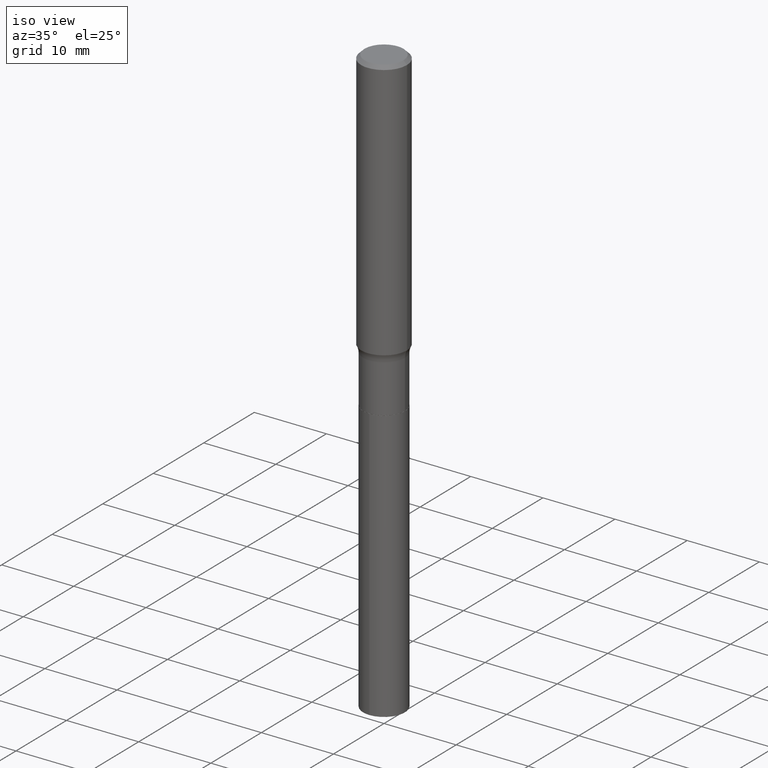
[diagram: clean part render]
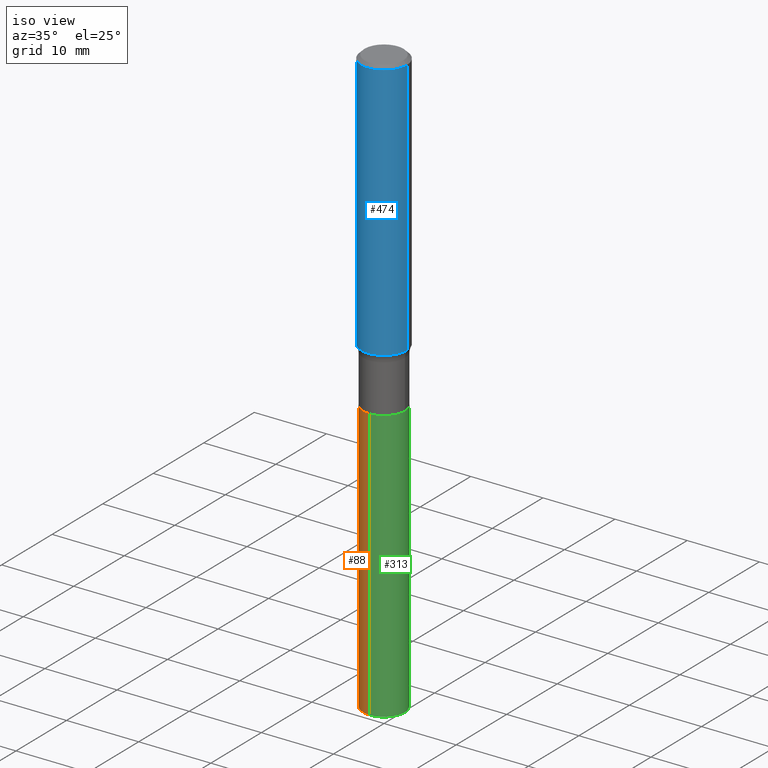
[diagram: same view with three faces highlighted in distinct colors, each labeled with its STEP entity id]
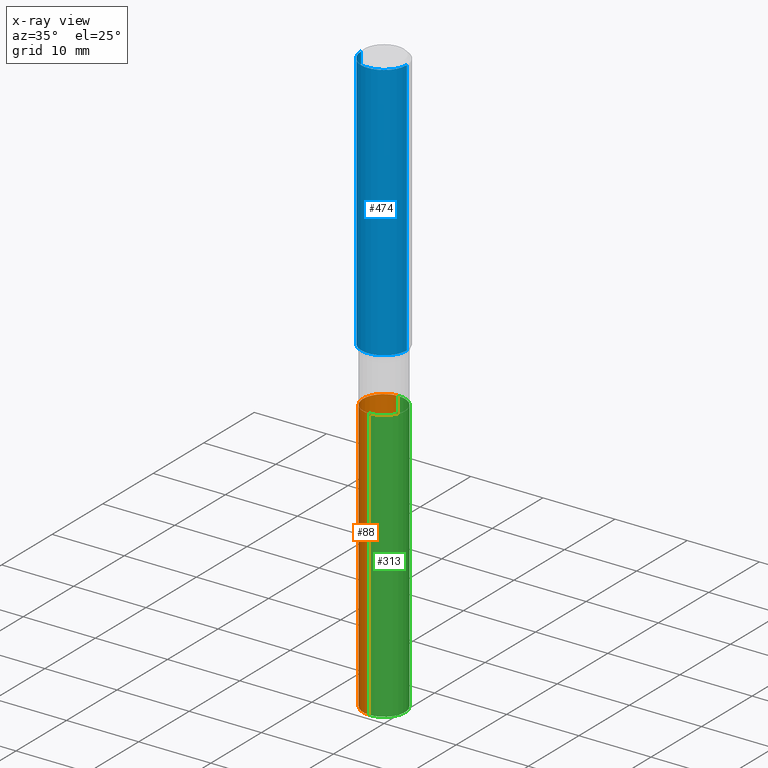
[diagram: x-ray of the same camera — body ghosted, the three highlighted faces saturated]
A machine part, iso view with three faces highlighted in distinct colors.
The next image is the same camera in x-ray (body ghosted, the three faces saturated) — at least one of them is partly hidden behind the body in this view.
Their STEP definitions:

[orange] entity #88 — the highlighted cylindrical surface (edge-blend (fillet) strip) has radius 2.8956 mm, axis along (-0, 0, 1).
#3 = DIRECTION ( 'NONE',  ( -6.982962677686265922E-15, -1.000000000000000000, 2.396357889179178137E-15 ) ) ;
#15 = AXIS2_PLACEMENT_3D ( 'NONE', #415, #419, #383 ) ;
#38 = CIRCLE ( 'NONE', #15, 0.1140000000000000041 ) ;
#41 = VERTEX_POINT ( 'NONE', #216 ) ;
#74 = CYLINDRICAL_SURFACE ( 'NONE', #453, 0.1140000000000000041 ) ;
#76 = DIRECTION ( 'NONE',  ( -2.445481192190742452E-29, 3.491463601378150534E-15, 1.000000000000000000 ) ) ;
#88 = ADVANCED_FACE ( 'NONE', ( #125 ), #74, .T. ) ;
#96 = VECTOR ( 'NONE', #76, 39.37007874015748143 ) ;
#104 = VERTEX_POINT ( 'NONE', #187 ) ;
#125 = FACE_OUTER_BOUND ( 'NONE', #431, .T. ) ;
#163 = EDGE_CURVE ( 'NONE', #41, #175, #491, .T. ) ;
#173 = ORIENTED_EDGE ( 'NONE', *, *, #249, .F. ) ;
#175 = VERTEX_POINT ( 'NONE', #230 ) ;
#186 = LINE ( 'NONE', #487, #471 ) ;
#187 = CARTESIAN_POINT ( 'NONE',  ( -7.960577452561921181E-16, -0.1140000000000060271, -1.727999999999999758 ) ) ;
#216 = CARTESIAN_POINT ( 'NONE',  ( 8.100187187665928313E-16, 0.1139999999999888047, -3.214055938067796880 ) ) ;
#217 = CARTESIAN_POINT ( 'NONE',  ( 4.225770097087915869E-29, -6.033279753520955359E-15, -1.727999999999999980 ) ) ;
#228 = EDGE_CURVE ( 'NONE', #350, #104, #186, .T. ) ;
#229 = ORIENTED_EDGE ( 'NONE', *, *, #357, .T. ) ;
#230 = CARTESIAN_POINT ( 'NONE',  ( 8.100187187665930286E-16, 0.1139999999999939950, -1.728000000000000203 ) ) ;
#249 = EDGE_CURVE ( 'NONE', #175, #104, #398, .T. ) ;
#263 = DIRECTION ( 'NONE',  ( -2.445481192190742452E-29, 3.491463601378150534E-15, 1.000000000000000000 ) ) ;
#266 = CARTESIAN_POINT ( 'NONE',  ( -7.960577452561559291E-16, -0.1140000000000112312, -3.214055938067795548 ) ) ;
#267 = DIRECTION ( 'NONE',  ( -2.445481192190742172E-29, 3.491463601378150534E-15, 1.000000000000000000 ) ) ;
#283 = ORIENTED_EDGE ( 'NONE', *, *, #228, .T. ) ;
#302 = ORIENTED_EDGE ( 'NONE', *, *, #163, .F. ) ;
#328 = DIRECTION ( 'NONE',  ( -6.982962677686265922E-15, -1.000000000000000000, 2.396357889179178137E-15 ) ) ;
#350 = VERTEX_POINT ( 'NONE', #266 ) ;
#352 = DIRECTION ( 'NONE',  ( -2.445481192190742172E-29, 3.491463601378150534E-15, 1.000000000000000000 ) ) ;
#357 = EDGE_CURVE ( 'NONE', #41, #350, #38, .T. ) ;
#383 = DIRECTION ( 'NONE',  ( -6.982962677686265922E-15, -1.000000000000000000, 4.792715778358356274E-15 ) ) ;
#398 = CIRCLE ( 'NONE', #441, 0.1140000000000000041 ) ;
#415 = CARTESIAN_POINT ( 'NONE',  ( 7.859891944176082660E-29, -1.122178997089652905E-14, -3.214055938067796436 ) ) ;
#419 = DIRECTION ( 'NONE',  ( -2.445481192190742172E-29, 3.491463601378150534E-15, 1.000000000000000000 ) ) ;
#422 = CARTESIAN_POINT ( 'NONE',  ( 8.100187187665563465E-16, 0.1139999999999939673, -1.728000000000000203 ) ) ;
#424 = CARTESIAN_POINT ( 'NONE',  ( 4.225770097087915869E-29, -6.033279753520955359E-15, -1.727999999999999980 ) ) ;
#431 = EDGE_LOOP ( 'NONE', ( #302, #229, #283, #173 ) ) ;
#441 = AXIS2_PLACEMENT_3D ( 'NONE', #424, #352, #3 ) ;
#453 = AXIS2_PLACEMENT_3D ( 'NONE', #217, #267, #328 ) ;
#471 = VECTOR ( 'NONE', #263, 39.37007874015748143 ) ;
#487 = CARTESIAN_POINT ( 'NONE',  ( -7.960577452561921181E-16, -0.1140000000000060271, -1.727999999999999758 ) ) ;
#491 = LINE ( 'NONE', #422, #96 ) ;

[blue] entity #474 — the highlighted cylindrical surface (edge-blend (fillet) strip) has radius 3.175 mm, axis along (-0, 0, 1).
#17 = VERTEX_POINT ( 'NONE', #433 ) ;
#23 = EDGE_LOOP ( 'NONE', ( #242, #333, #434, #202 ) ) ;
#25 = CARTESIAN_POINT ( 'NONE',  ( 0.1250000000000000000, -9.383356098140926809E-16, -0.01875000000000012768 ) ) ;
#29 = CARTESIAN_POINT ( 'NONE',  ( -0.1250000000000000000, -1.633740458479338781E-15, -0.01875000000000012768 ) ) ;
#58 = EDGE_CURVE ( 'NONE', #145, #446, #489, .T. ) ;
#64 = AXIS2_PLACEMENT_3D ( 'NONE', #178, #149, #407 ) ;
#85 = CIRCLE ( 'NONE', #362, 0.1250000000000000000 ) ;
#90 = VECTOR ( 'NONE', #258, 39.37007874015748143 ) ;
#106 = DIRECTION ( 'NONE',  ( 1.000000000000000000, -6.982962677686266711E-15, 0.000000000000000000 ) ) ;
#119 = DIRECTION ( 'NONE',  ( 1.000000000000000000, -6.982962677686269077E-15, 0.000000000000000000 ) ) ;
#131 = CARTESIAN_POINT ( 'NONE',  ( 3.486902385253749219E-29, -4.978372481255620459E-15, -1.425862548904567761 ) ) ;
#134 = CARTESIAN_POINT ( 'NONE',  ( 0.1250000000000001943, -5.851242815966405376E-15, -1.425862548904567761 ) ) ;
#141 = CYLINDRICAL_SURFACE ( 'NONE', #64, 0.1250000000000000833 ) ;
#145 = VERTEX_POINT ( 'NONE', #134 ) ;
#149 = DIRECTION ( 'NONE',  ( -2.445468806185136597E-29, 3.491481338843145583E-15, 1.000000000000000000 ) ) ;
#156 = CARTESIAN_POINT ( 'NONE',  ( 0.1250000000000000833, -8.728703347107839305E-16, 6.095220969744923945E-30 ) ) ;
#178 = CARTESIAN_POINT ( 'NONE',  ( 0.000000000000000000, 0.000000000000000000, 0.000000000000000000 ) ) ;
#182 = CARTESIAN_POINT ( 'NONE',  ( 4.585254011597162123E-31, -6.546527510330942834E-17, -0.01875000000000012768 ) ) ;
#202 = ORIENTED_EDGE ( 'NONE', *, *, #448, .F. ) ;
#206 = AXIS2_PLACEMENT_3D ( 'NONE', #131, #271, #119 ) ;
#242 = ORIENTED_EDGE ( 'NONE', *, *, #484, .F. ) ;
#243 = EDGE_CURVE ( 'NONE', #17, #145, #485, .T. ) ;
#258 = DIRECTION ( 'NONE',  ( -2.445468806185136877E-29, 3.491481338843145188E-15, 1.000000000000000000 ) ) ;
#271 = DIRECTION ( 'NONE',  ( -2.445468806185136597E-29, 3.491481338843145583E-15, 1.000000000000000000 ) ) ;
#319 = DIRECTION ( 'NONE',  ( -2.445468806185136597E-29, 3.491481338843145583E-15, 1.000000000000000000 ) ) ;
#321 = VERTEX_POINT ( 'NONE', #29 ) ;
#330 = DIRECTION ( 'NONE',  ( -2.445468806185136877E-29, 3.491481338843145188E-15, 1.000000000000000000 ) ) ;
#333 = ORIENTED_EDGE ( 'NONE', *, *, #243, .T. ) ;
#362 = AXIS2_PLACEMENT_3D ( 'NONE', #182, #319, #106 ) ;
#364 = CARTESIAN_POINT ( 'NONE',  ( -0.1250000000000000833, 8.881784197001258240E-16, -6.148668862818636431E-30 ) ) ;
#393 = VECTOR ( 'NONE', #330, 39.37007874015748143 ) ;
#405 = LINE ( 'NONE', #364, #393 ) ;
#407 = DIRECTION ( 'NONE',  ( 1.000000000000000000, -6.982962677686266711E-15, 4.876176775795935793E-29 ) ) ;
#433 = CARTESIAN_POINT ( 'NONE',  ( -0.1250000000000001943, -4.090194061555494438E-15, -1.425862548904567761 ) ) ;
#434 = ORIENTED_EDGE ( 'NONE', *, *, #58, .T. ) ;
#446 = VERTEX_POINT ( 'NONE', #25 ) ;
#448 = EDGE_CURVE ( 'NONE', #321, #446, #85, .T. ) ;
#474 = ADVANCED_FACE ( 'NONE', ( #478 ), #141, .T. ) ;
#478 = FACE_OUTER_BOUND ( 'NONE', #23, .T. ) ;
#484 = EDGE_CURVE ( 'NONE', #17, #321, #405, .T. ) ;
#485 = CIRCLE ( 'NONE', #206, 0.1250000000000001665 ) ;
#489 = LINE ( 'NONE', #156, #90 ) ;

[green] entity #313 — the highlighted cylindrical surface (edge-blend (fillet) strip) has radius 2.8956 mm, axis along (-0, 0, 1).
#11 = ORIENTED_EDGE ( 'NONE', *, *, #163, .T. ) ;
#41 = VERTEX_POINT ( 'NONE', #216 ) ;
#76 = DIRECTION ( 'NONE',  ( -2.445481192190742452E-29, 3.491463601378150534E-15, 1.000000000000000000 ) ) ;
#94 = ORIENTED_EDGE ( 'NONE', *, *, #334, .F. ) ;
#96 = VECTOR ( 'NONE', #76, 39.37007874015748143 ) ;
#104 = VERTEX_POINT ( 'NONE', #187 ) ;
#105 = AXIS2_PLACEMENT_3D ( 'NONE', #124, #444, #219 ) ;
#111 = DIRECTION ( 'NONE',  ( -2.445481192190742172E-29, 3.491463601378150534E-15, 1.000000000000000000 ) ) ;
#124 = CARTESIAN_POINT ( 'NONE',  ( 4.225770097087915869E-29, -6.033279753520955359E-15, -1.727999999999999980 ) ) ;
#144 = CYLINDRICAL_SURFACE ( 'NONE', #248, 0.1140000000000000041 ) ;
#163 = EDGE_CURVE ( 'NONE', #41, #175, #491, .T. ) ;
#172 = DIRECTION ( 'NONE',  ( -2.445481192190742172E-29, 3.491463601378150534E-15, 1.000000000000000000 ) ) ;
#175 = VERTEX_POINT ( 'NONE', #230 ) ;
#186 = LINE ( 'NONE', #487, #471 ) ;
#187 = CARTESIAN_POINT ( 'NONE',  ( -7.960577452561921181E-16, -0.1140000000000060271, -1.727999999999999758 ) ) ;
#201 = CARTESIAN_POINT ( 'NONE',  ( 4.225770097087915869E-29, -6.033279753520955359E-15, -1.727999999999999980 ) ) ;
#211 = ORIENTED_EDGE ( 'NONE', *, *, #228, .F. ) ;
#216 = CARTESIAN_POINT ( 'NONE',  ( 8.100187187665928313E-16, 0.1139999999999888047, -3.214055938067796880 ) ) ;
#219 = DIRECTION ( 'NONE',  ( -6.982962677686265922E-15, -1.000000000000000000, 2.396357889179178137E-15 ) ) ;
#228 = EDGE_CURVE ( 'NONE', #350, #104, #186, .T. ) ;
#230 = CARTESIAN_POINT ( 'NONE',  ( 8.100187187665930286E-16, 0.1139999999999939950, -1.728000000000000203 ) ) ;
#248 = AXIS2_PLACEMENT_3D ( 'NONE', #201, #172, #288 ) ;
#263 = DIRECTION ( 'NONE',  ( -2.445481192190742452E-29, 3.491463601378150534E-15, 1.000000000000000000 ) ) ;
#266 = CARTESIAN_POINT ( 'NONE',  ( -7.960577452561559291E-16, -0.1140000000000112312, -3.214055938067795548 ) ) ;
#279 = EDGE_LOOP ( 'NONE', ( #366, #11, #94, #211 ) ) ;
#288 = DIRECTION ( 'NONE',  ( -6.982962677686265922E-15, -1.000000000000000000, 2.396357889179178137E-15 ) ) ;
#290 = CIRCLE ( 'NONE', #105, 0.1140000000000000041 ) ;
#305 = AXIS2_PLACEMENT_3D ( 'NONE', #335, #111, #482 ) ;
#313 = ADVANCED_FACE ( 'NONE', ( #436 ), #144, .T. ) ;
#334 = EDGE_CURVE ( 'NONE', #104, #175, #290, .T. ) ;
#335 = CARTESIAN_POINT ( 'NONE',  ( 7.859891944176082660E-29, -1.122178997089652905E-14, -3.214055938067796436 ) ) ;
#350 = VERTEX_POINT ( 'NONE', #266 ) ;
#355 = CIRCLE ( 'NONE', #305, 0.1140000000000000041 ) ;
#366 = ORIENTED_EDGE ( 'NONE', *, *, #430, .T. ) ;
#422 = CARTESIAN_POINT ( 'NONE',  ( 8.100187187665563465E-16, 0.1139999999999939673, -1.728000000000000203 ) ) ;
#430 = EDGE_CURVE ( 'NONE', #350, #41, #355, .T. ) ;
#436 = FACE_OUTER_BOUND ( 'NONE', #279, .T. ) ;
#444 = DIRECTION ( 'NONE',  ( -2.445481192190742172E-29, 3.491463601378150534E-15, 1.000000000000000000 ) ) ;
#471 = VECTOR ( 'NONE', #263, 39.37007874015748143 ) ;
#482 = DIRECTION ( 'NONE',  ( -6.982962677686265922E-15, -1.000000000000000000, 4.792715778358356274E-15 ) ) ;
#487 = CARTESIAN_POINT ( 'NONE',  ( -7.960577452561921181E-16, -0.1140000000000060271, -1.727999999999999758 ) ) ;
#491 = LINE ( 'NONE', #422, #96 ) ;